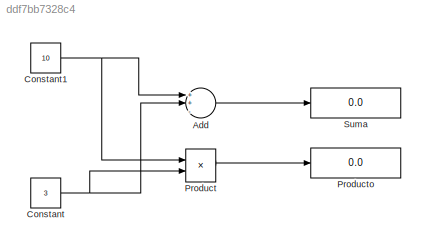
MODEL slx_ddf7bb7328c4
KIND model
BLOCK [Sum] Add
  InputSameDT = off
  Inputs = ++-
  OutDataTypeStr = Inherit: Inherit via internal rule
  Ports = [3, 1]
  SaturateOnIntegerOverflow = off
BLOCK [Constant] Constant
  Value = 3
BLOCK [Constant] Constant1
  Value = 10
BLOCK [Product] Product 
  InputSameDT = off
  Inputs = **
  OutDataTypeStr = Inherit: Inherit via internal rule
  Ports = [2, 1]
  RndMeth = Floor
  SaturateOnIntegerOverflow = off
BLOCK [Display] Producto 
  Decimation = 1
  Ports = [1]
BLOCK [Display] Suma
  Decimation = 1
  Ports = [1]
LINE Add:1 -> Suma:1
NET Constant1:1 -> Add:1, Product :1
NET Constant:1 -> Add:2, Product :2
LINE Product :1 -> Producto :1
note: NET lines group one-source signal fan-out (src -> all destinations, sorted); 1:1 wires keep LINE
